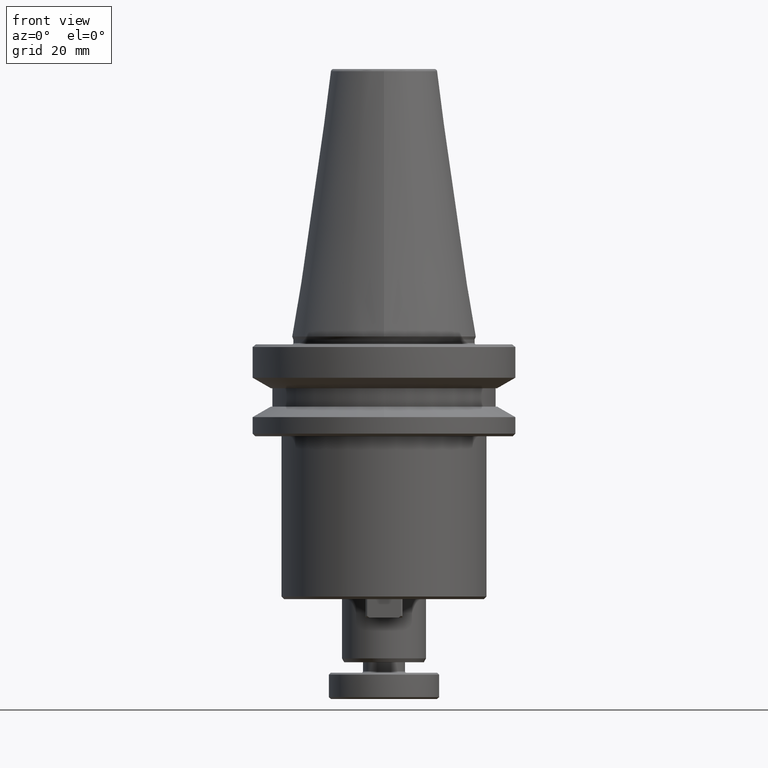
[diagram: clean part render]
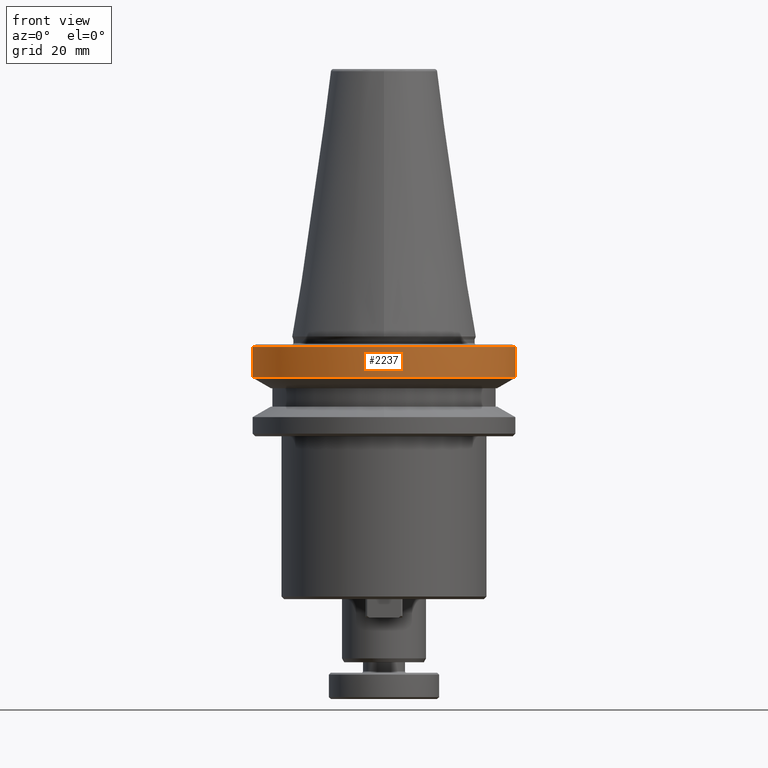
[diagram: same view with one face highlighted and labeled with its STEP entity id]
A machine part, front view. The second image highlights one B-rep face of the part: STEP entity #2237.
In plain terms, the highlighted cylindrical surface (partial cylindrical patch) has radius 50 mm, axis along (0, 0, 1).
Its self-contained STEP definition (entity closure, byte-faithful):
#218 = CIRCLE ( 'NONE', #2712, 50.00000000000000000 ) ;
#297 = CARTESIAN_POINT ( 'NONE',  ( -50.00000000000000000, 6.123233995736766100E-015, -3.999999999999989800 ) ) ;
#374 = ORIENTED_EDGE ( 'NONE', *, *, #376, .T. ) ;
#376 = EDGE_CURVE ( 'NONE', #399, #2163, #811, .T. ) ;
#399 = VERTEX_POINT ( 'NONE', #1642 ) ;
#456 = ORIENTED_EDGE ( 'NONE', *, *, #1363, .F. ) ;
#490 = DIRECTION ( 'NONE',  ( 0.0000000000000000000, 0.0000000000000000000, 1.000000000000000000 ) ) ;
#493 = CARTESIAN_POINT ( 'NONE',  ( -50.00000000000000000, 6.123233995736766100E-015, 124.5046326327850600 ) ) ;
#668 = VERTEX_POINT ( 'NONE', #1203 ) ;
#740 = EDGE_CURVE ( 'NONE', #2620, #2163, #218, .T. ) ;
#752 = CYLINDRICAL_SURFACE ( 'NONE', #2545, 50.00000000000000000 ) ;
#762 = EDGE_CURVE ( 'NONE', #668, #399, #2470, .T. ) ;
#779 = EDGE_CURVE ( 'NONE', #1571, #2620, #2330, .T. ) ;
#811 = LINE ( 'NONE', #1683, #2675 ) ;
#983 = ORIENTED_EDGE ( 'NONE', *, *, #779, .F. ) ;
#1029 = DIRECTION ( 'NONE',  ( -1.000000000000000000, 0.0000000000000000000, -3.469446951953614200E-017 ) ) ;
#1030 = DIRECTION ( 'NONE',  ( -0.0000000000000000000, -0.0000000000000000000, 1.000000000000000000 ) ) ;
#1031 = CARTESIAN_POINT ( 'NONE',  ( 0.0000000000000000000, 0.0000000000000000000, -3.999999999999989800 ) ) ;
#1054 = DIRECTION ( 'NONE',  ( 1.000000000000000000, 0.0000000000000000000, 0.0000000000000000000 ) ) ;
#1056 = DIRECTION ( 'NONE',  ( 0.0000000000000000000, 0.0000000000000000000, 1.000000000000000000 ) ) ;
#1060 = CARTESIAN_POINT ( 'NONE',  ( 0.0000000000000000000, 0.0000000000000000000, -15.70022000322675400 ) ) ;
#1115 = DIRECTION ( 'NONE',  ( -1.000000000000000000, 0.0000000000000000000, -3.469446951953614200E-017 ) ) ;
#1119 = DIRECTION ( 'NONE',  ( -0.0000000000000000000, -0.0000000000000000000, 1.000000000000000000 ) ) ;
#1125 = CARTESIAN_POINT ( 'NONE',  ( 0.0000000000000000000, 0.0000000000000000000, -3.999999999999989800 ) ) ;
#1203 = CARTESIAN_POINT ( 'NONE',  ( -50.00000000000000000, 6.123233995736766100E-015, -15.70022000322675400 ) ) ;
#1363 = EDGE_CURVE ( 'NONE', #668, #1571, #2505, .T. ) ;
#1406 = FACE_OUTER_BOUND ( 'NONE', #1973, .T. ) ;
#1571 = VERTEX_POINT ( 'NONE', #297 ) ;
#1605 = ORIENTED_EDGE ( 'NONE', *, *, #762, .T. ) ;
#1642 = CARTESIAN_POINT ( 'NONE',  ( 50.00000000000000000, 0.0000000000000000000, -15.70022000322675400 ) ) ;
#1683 = CARTESIAN_POINT ( 'NONE',  ( 50.00000000000000000, 0.0000000000000000000, 124.5046326327850600 ) ) ;
#1708 = DIRECTION ( 'NONE',  ( 0.0000000000000000000, 0.0000000000000000000, 1.000000000000000000 ) ) ;
#1769 = VECTOR ( 'NONE', #490, 1000.000000000000000 ) ;
#1949 = DIRECTION ( 'NONE',  ( 1.000000000000000000, 0.0000000000000000000, 0.0000000000000000000 ) ) ;
#1973 = EDGE_LOOP ( 'NONE', ( #456, #1605, #374, #2200, #983 ) ) ;
#2139 = DIRECTION ( 'NONE',  ( 0.0000000000000000000, 0.0000000000000000000, 1.000000000000000000 ) ) ;
#2144 = CARTESIAN_POINT ( 'NONE',  ( 0.0000000000000000000, 0.0000000000000000000, 124.5046326327850600 ) ) ;
#2163 = VERTEX_POINT ( 'NONE', #2531 ) ;
#2200 = ORIENTED_EDGE ( 'NONE', *, *, #740, .F. ) ;
#2237 = ADVANCED_FACE ( 'NONE', ( #1406 ), #752, .T. ) ;
#2330 = CIRCLE ( 'NONE', #2640, 50.00000000000000000 ) ;
#2368 = CARTESIAN_POINT ( 'NONE',  ( 6.123233995736766100E-015, -50.00000000000000000, -3.999999999999989800 ) ) ;
#2470 = CIRCLE ( 'NONE', #2658, 50.00000000000000000 ) ;
#2505 = LINE ( 'NONE', #493, #1769 ) ;
#2531 = CARTESIAN_POINT ( 'NONE',  ( 50.00000000000000000, 0.0000000000000000000, -3.999999999999989800 ) ) ;
#2545 = AXIS2_PLACEMENT_3D ( 'NONE', #2144, #2139, #1949 ) ;
#2620 = VERTEX_POINT ( 'NONE', #2368 ) ;
#2640 = AXIS2_PLACEMENT_3D ( 'NONE', #1031, #1030, #1029 ) ;
#2658 = AXIS2_PLACEMENT_3D ( 'NONE', #1060, #1056, #1054 ) ;
#2675 = VECTOR ( 'NONE', #1708, 1000.000000000000000 ) ;
#2712 = AXIS2_PLACEMENT_3D ( 'NONE', #1125, #1119, #1115 ) ;